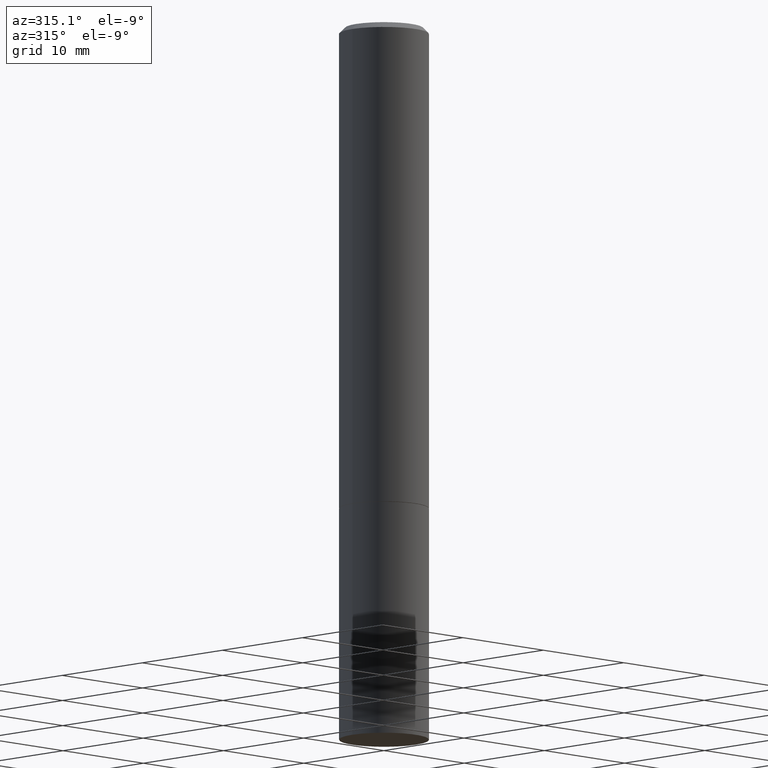
[diagram: clean part render]
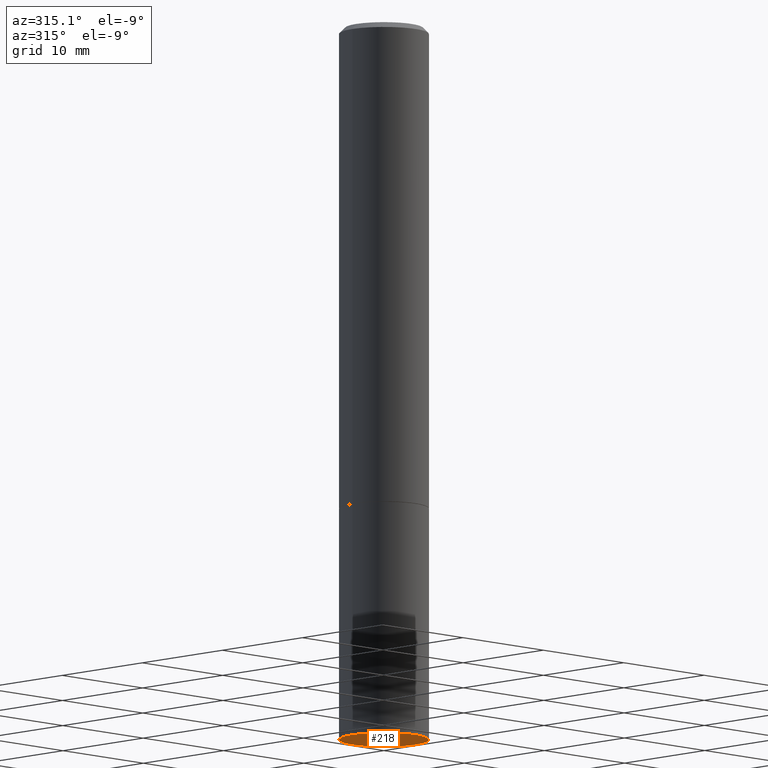
[diagram: same view with one face highlighted and labeled with its STEP entity id]
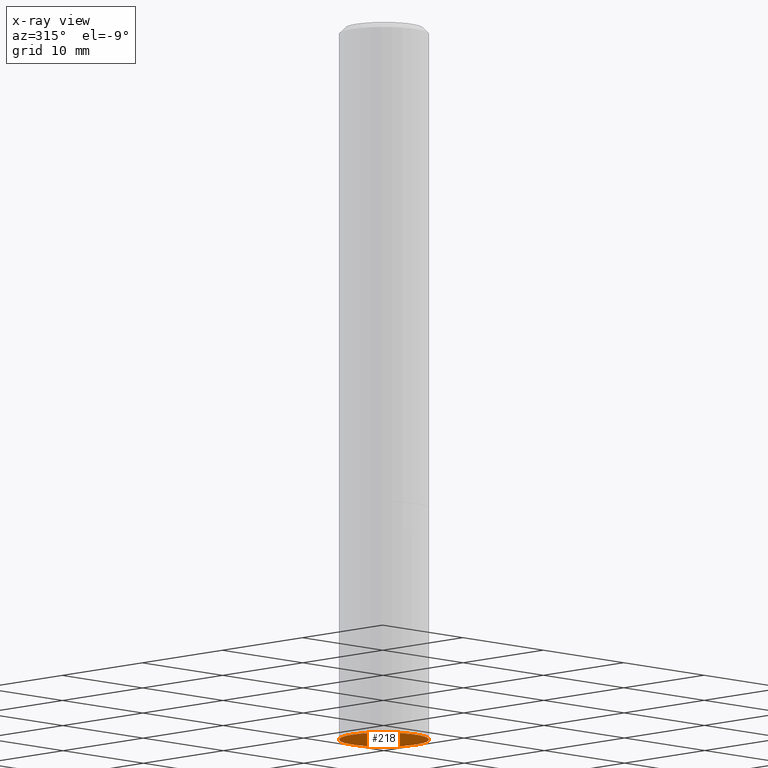
[diagram: x-ray of the same camera — body ghosted, the highlighted face saturated]
A machine part, auxiliary view. The second image highlights one B-rep face of the part: STEP entity #218.
The next image is the same camera in x-ray: the body ghosted, the highlighted face saturated — about 0% of this face is hidden behind the body in this view.
In plain terms, the highlighted planar face has unit normal (0, -0, -1).
Its self-contained STEP definition (entity closure, byte-faithful):
#10 = ORIENTED_EDGE ( 'NONE', *, *, #73, .F. ) ;
#22 = CIRCLE ( 'NONE', #141, 0.1562500000000000000 ) ;
#73 = EDGE_CURVE ( 'NONE', #321, #291, #22, .T. ) ;
#93 = DIRECTION ( 'NONE',  ( 1.000000000000000000, -6.982962677686269077E-15, 0.000000000000000000 ) ) ;
#126 = CIRCLE ( 'NONE', #293, 0.1562500000000000000 ) ;
#140 = DIRECTION ( 'NONE',  ( -2.445468806185136597E-29, 3.491481338843145583E-15, 1.000000000000000000 ) ) ;
#141 = AXIS2_PLACEMENT_3D ( 'NONE', #246, #299, #93 ) ;
#151 = ORIENTED_EDGE ( 'NONE', *, *, #271, .F. ) ;
#173 = CARTESIAN_POINT ( 'NONE',  ( 0.1562500000000000000, -9.819791265496344905E-15, -2.500000000000000000 ) ) ;
#202 = CARTESIAN_POINT ( 'NONE',  ( 1.091087918388540310E-15, 0.1562499999999912570, -2.500000000000000444 ) ) ;
#210 = EDGE_LOOP ( 'NONE', ( #151, #10 ) ) ;
#217 = AXIS2_PLACEMENT_3D ( 'NONE', #202, #310, #233 ) ;
#218 = ADVANCED_FACE ( 'NONE', ( #340 ), #290, .T. ) ;
#233 = DIRECTION ( 'NONE',  ( -1.000000000000000000, 6.982962677686265922E-15, -4.876176775795935793E-29 ) ) ;
#246 = CARTESIAN_POINT ( 'NONE',  ( 6.113672015462842613E-29, -8.728703347107864943E-15, -2.500000000000000000 ) ) ;
#256 = DIRECTION ( 'NONE',  ( 1.000000000000000000, -6.982962677686269077E-15, 0.000000000000000000 ) ) ;
#271 = EDGE_CURVE ( 'NONE', #291, #321, #126, .T. ) ;
#279 = CARTESIAN_POINT ( 'NONE',  ( 6.113672015462842613E-29, -8.728703347107864943E-15, -2.500000000000000000 ) ) ;
#290 = PLANE ( 'NONE',  #217 ) ;
#291 = VERTEX_POINT ( 'NONE', #173 ) ;
#293 = AXIS2_PLACEMENT_3D ( 'NONE', #279, #140, #256 ) ;
#299 = DIRECTION ( 'NONE',  ( -2.445468806185136597E-29, 3.491481338843145583E-15, 1.000000000000000000 ) ) ;
#310 = DIRECTION ( 'NONE',  ( 2.438088387897960049E-29, -3.491481338843145188E-15, -1.000000000000000000 ) ) ;
#317 = CARTESIAN_POINT ( 'NONE',  ( -0.1562500000000000000, -6.200938898912389918E-15, -2.500000000000000000 ) ) ;
#321 = VERTEX_POINT ( 'NONE', #317 ) ;
#340 = FACE_OUTER_BOUND ( 'NONE', #210, .T. ) ;